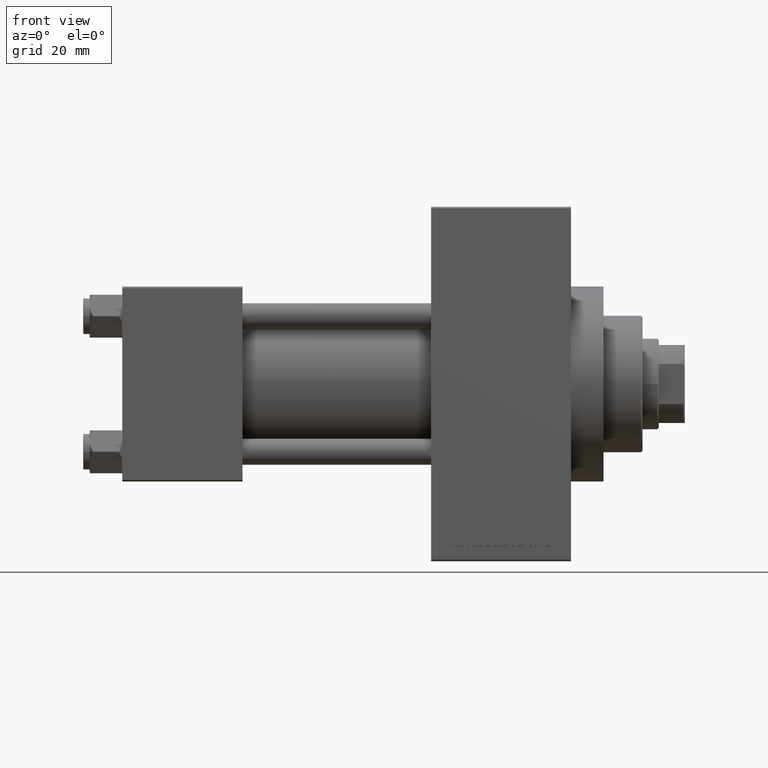
[diagram: clean part render]
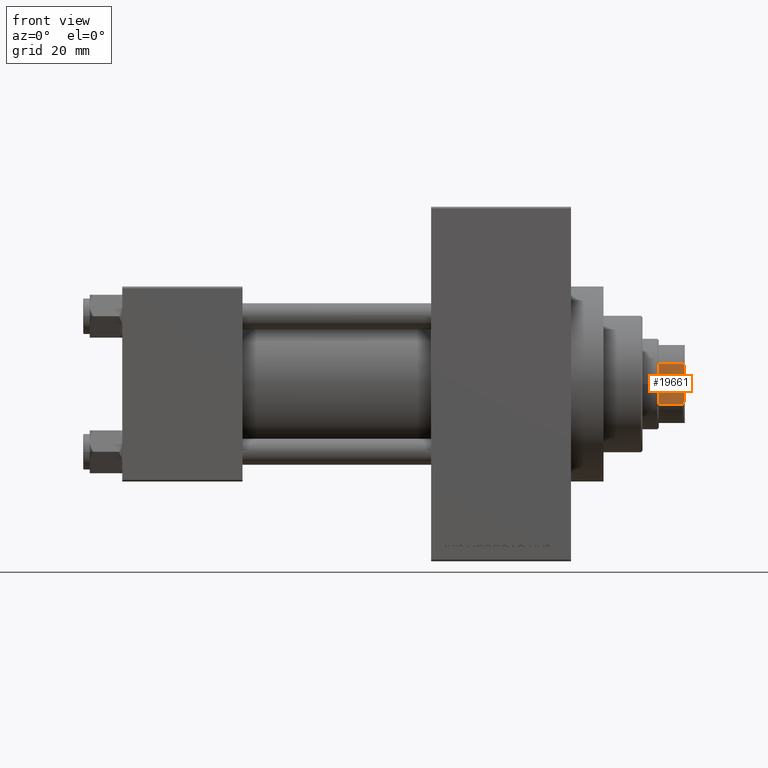
[diagram: same view with one face highlighted and labeled with its STEP entity id]
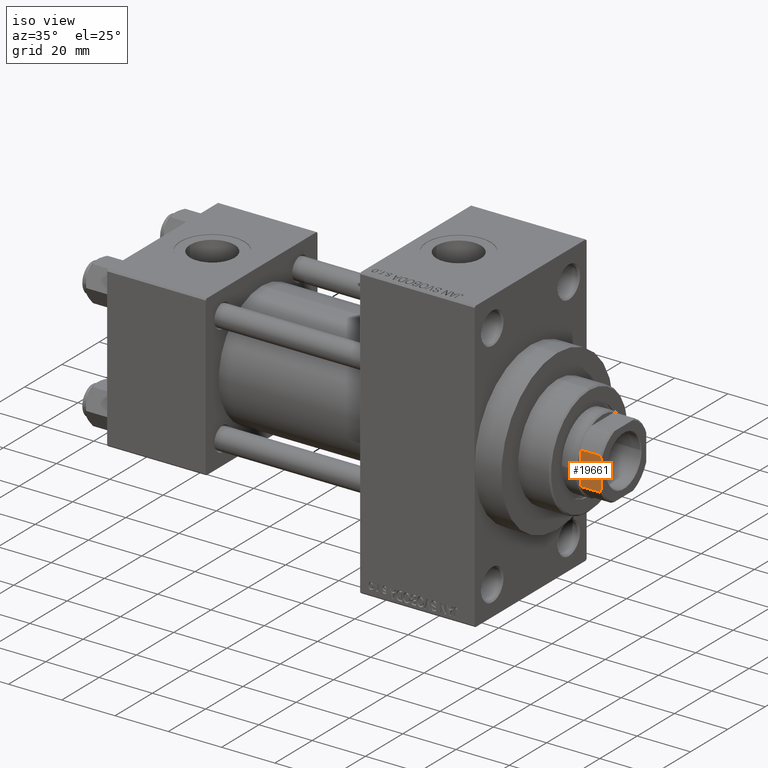
[diagram: same view with one face highlighted and labeled with its STEP entity id]
A machine part, front view. The second image highlights one B-rep face of the part: STEP entity #19661.
A second angle (iso view) of the same face is appended — the face is thin or edge-on in the first view.
In plain terms, the highlighted planar face has unit normal (0, 1, 0).
Its self-contained STEP definition (entity closure, byte-faithful):
#14 = CARTESIAN_POINT ( 'NONE',  ( 12.00000000000000178, -5.000000000000056843, 136.0000000000000000 ) ) ;
#857 = AXIS2_PLACEMENT_3D ( 'NONE', #904, #7367, #34566 ) ;
#904 = CARTESIAN_POINT ( 'NONE',  ( 11.99999999999999645, 11.99999999999999645, 136.0000000000000000 ) ) ;
#1065 = CARTESIAN_POINT ( 'NONE',  ( 11.99999999999999467, -6.184658438426501981, -0.001000000000001000089 ) ) ;
#1396 = DIRECTION ( 'NONE',  ( -2.891205793294678326E-16, 1.000000000000000000, -0.000000000000000000 ) ) ;
#3499 = CARTESIAN_POINT ( 'NONE',  ( 11.99999999999999645, 6.184658438426496652, -0.001000000000001000089 ) ) ;
#4772 = VECTOR ( 'NONE', #25785, 1000.000000000000000 ) ;
#5744 = B_SPLINE_CURVE_WITH_KNOTS ( 'NONE', 3,
 ( #32172, #16594, #17574, #13129 ),
 .UNSPECIFIED., .F., .F.,
 ( 4, 4 ),
 ( 8.673617379884035472E-19, 0.001285852097146073176 ),
 .UNSPECIFIED. ) ;
#6967 = DIRECTION ( 'NONE',  ( -0.000000000000000000, -0.000000000000000000, 1.000000000000000000 ) ) ;
#7367 = DIRECTION ( 'NONE',  ( -1.000000000000000000, -2.891205793294678326E-16, 0.000000000000000000 ) ) ;
#7524 = LINE ( 'NONE', #1065, #41850 ) ;
#8699 = EDGE_CURVE ( 'NONE', #31233, #32881, #17605, .T. ) ;
#8833 = VERTEX_POINT ( 'NONE', #14 ) ;
#8953 = CARTESIAN_POINT ( 'NONE',  ( 11.99999999999999822, 5.000000000000037303, 136.0000000000000000 ) ) ;
#9675 = CARTESIAN_POINT ( 'NONE',  ( 11.99999999999999822, 5.400255697127821719, 135.8460555011047006 ) ) ;
#11167 = VERTEX_POINT ( 'NONE', #45980 ) ;
#12682 = CARTESIAN_POINT ( 'NONE',  ( 11.99999999999999467, -6.184658438426501981, 128.0000000000000853 ) ) ;
#13129 = CARTESIAN_POINT ( 'NONE',  ( 11.99999999999999467, -6.184658438426501981, 135.5000000000000284 ) ) ;
#16004 = CARTESIAN_POINT ( 'NONE',  ( 11.99999999999999645, 11.99999999999999645, 136.0000000000000000 ) ) ;
#16594 = CARTESIAN_POINT ( 'NONE',  ( 12.00000000000000178, -5.400255697127827936, 135.8460555011047006 ) ) ;
#17236 = ORIENTED_EDGE ( 'NONE', *, *, #8699, .T. ) ;
#17574 = CARTESIAN_POINT ( 'NONE',  ( 12.00000000000000178, -5.794808544282264329, 135.6785991435214385 ) ) ;
#17605 = LINE ( 'NONE', #3499, #29857 ) ;
#19471 = FACE_OUTER_BOUND ( 'NONE', #41309, .T. ) ;
#19661 = ADVANCED_FACE ( 'NONE', ( #19471 ), #45961, .F. ) ;
#20453 = LINE ( 'NONE', #16004, #26087 ) ;
#22287 = ORIENTED_EDGE ( 'NONE', *, *, #33868, .T. ) ;
#22546 = CARTESIAN_POINT ( 'NONE',  ( 11.99999999999999645, 6.184658438426496652, 135.5000000000000284 ) ) ;
#23111 = DIRECTION ( 'NONE',  ( -0.000000000000000000, -0.000000000000000000, 1.000000000000000000 ) ) ;
#25785 = DIRECTION ( 'NONE',  ( -2.891205793294678326E-16, 1.000000000000000000, -0.000000000000000000 ) ) ;
#26087 = VECTOR ( 'NONE', #1396, 1000.000000000000000 ) ;
#29504 = LINE ( 'NONE', #37652, #4772 ) ;
#29554 = ORIENTED_EDGE ( 'NONE', *, *, #37577, .T. ) ;
#29857 = VECTOR ( 'NONE', #6967, 1000.000000000000000 ) ;
#30245 = B_SPLINE_CURVE_WITH_KNOTS ( 'NONE', 3,
 ( #43827, #32184, #9675, #32929 ),
 .UNSPECIFIED., .F., .F.,
 ( 4, 4 ),
 ( 0.000000000000000000, 0.001285852097146085102 ),
 .UNSPECIFIED. ) ;
#30711 = VERTEX_POINT ( 'NONE', #12682 ) ;
#31233 = VERTEX_POINT ( 'NONE', #38690 ) ;
#31558 = ORIENTED_EDGE ( 'NONE', *, *, #39650, .F. ) ;
#32172 = CARTESIAN_POINT ( 'NONE',  ( 12.00000000000000178, -5.000000000000056843, 136.0000000000000000 ) ) ;
#32184 = CARTESIAN_POINT ( 'NONE',  ( 11.99999999999999645, 5.794808544282254559, 135.6785991435214385 ) ) ;
#32881 = VERTEX_POINT ( 'NONE', #22546 ) ;
#32929 = CARTESIAN_POINT ( 'NONE',  ( 11.99999999999999822, 5.000000000000037303, 136.0000000000000000 ) ) ;
#33703 = ORIENTED_EDGE ( 'NONE', *, *, #45590, .T. ) ;
#33868 = EDGE_CURVE ( 'NONE', #8833, #11167, #5744, .T. ) ;
#34566 = DIRECTION ( 'NONE',  ( 2.891205793294678326E-16, -1.000000000000000000, 0.000000000000000000 ) ) ;
#37577 = EDGE_CURVE ( 'NONE', #30711, #31233, #29504, .T. ) ;
#37652 = CARTESIAN_POINT ( 'NONE',  ( 11.99999999999999645, 11.99999999999999645, 128.0000000000000000 ) ) ;
#38262 = EDGE_CURVE ( 'NONE', #30711, #11167, #7524, .T. ) ;
#38690 = CARTESIAN_POINT ( 'NONE',  ( 11.99999999999999645, 6.184658438426496652, 128.0000000000000853 ) ) ;
#39650 = EDGE_CURVE ( 'NONE', #8833, #47115, #20453, .T. ) ;
#41309 = EDGE_LOOP ( 'NONE', ( #17236, #33703, #31558, #22287, #42631, #29554 ) ) ;
#41850 = VECTOR ( 'NONE', #23111, 1000.000000000000000 ) ;
#42631 = ORIENTED_EDGE ( 'NONE', *, *, #38262, .F. ) ;
#43827 = CARTESIAN_POINT ( 'NONE',  ( 11.99999999999999645, 6.184658438426496652, 135.5000000000000284 ) ) ;
#45590 = EDGE_CURVE ( 'NONE', #32881, #47115, #30245, .T. ) ;
#45961 = PLANE ( 'NONE',  #857 ) ;
#45980 = CARTESIAN_POINT ( 'NONE',  ( 11.99999999999999467, -6.184658438426501981, 135.5000000000000284 ) ) ;
#47115 = VERTEX_POINT ( 'NONE', #8953 ) ;